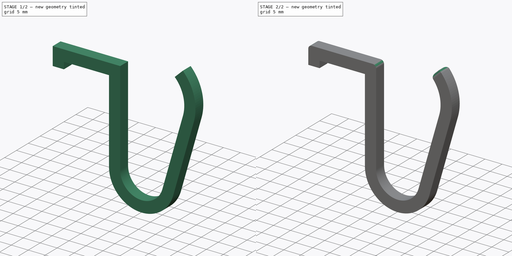
[diagram: build sequence overview — one tinted view per stage of 2, left to right]
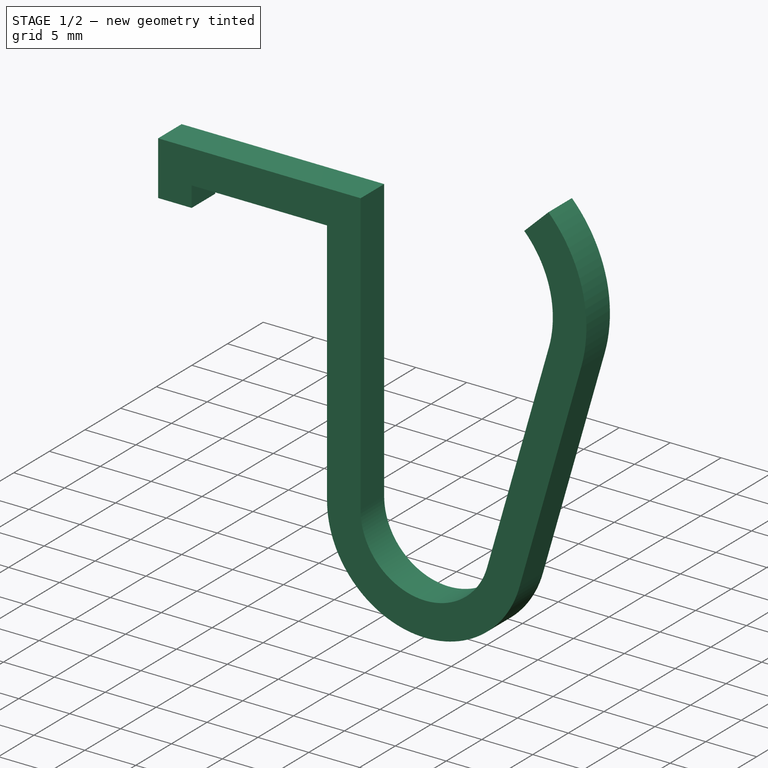
[diagram: stage 1 of 2 — iso view after this stage's code; geometry added in this stage tinted green]
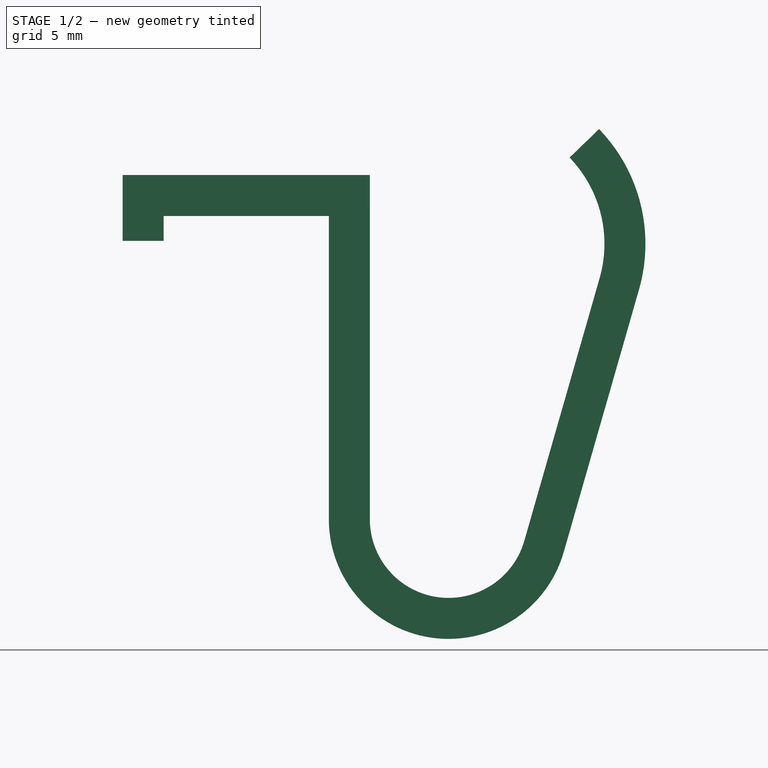
[diagram: stage 1 of 2 — front view after this stage's code; geometry added in this stage tinted green]
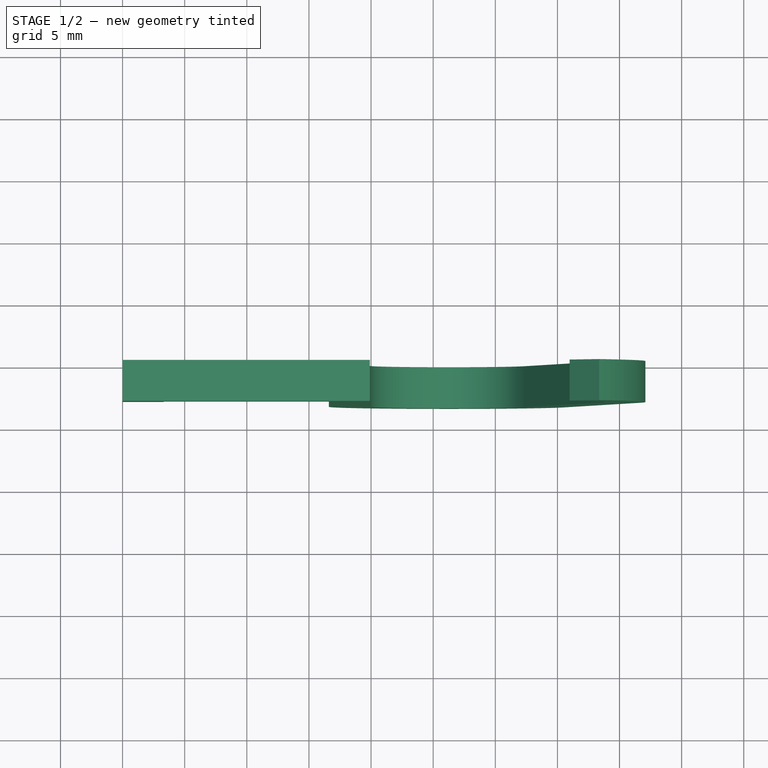
[diagram: stage 1 of 2 — top view after this stage's code; geometry added in this stage tinted green]
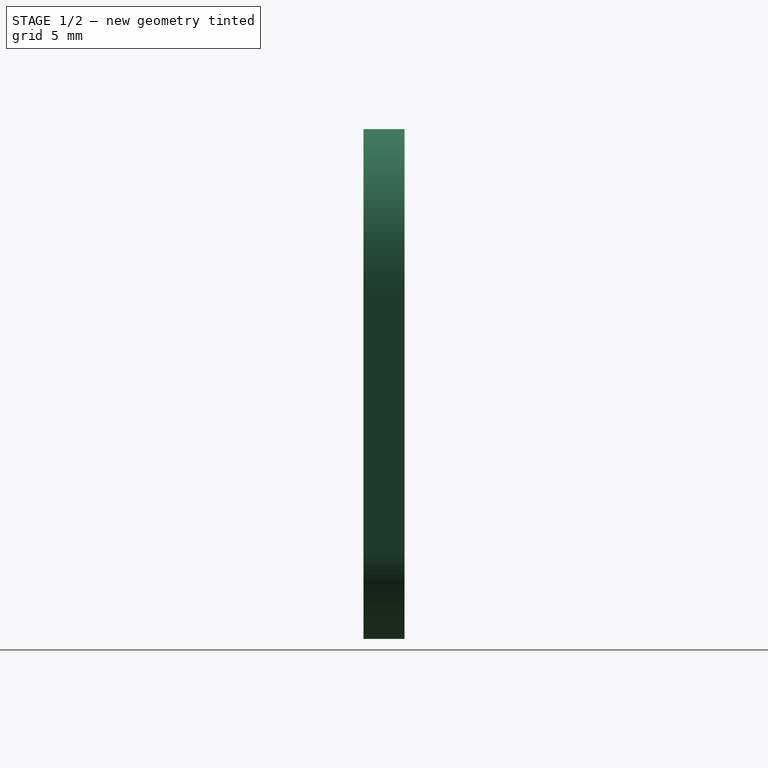
[diagram: stage 1 of 2 — right view after this stage's code; geometry added in this stage tinted green]
FCSTD DOCUMENT  (FreeCAD 0.19R22960 (Git))
Label: USB hub holder
License: All rights reserved
LicenseURL: http://en.wikipedia.org/wiki/All_rights_reserved
objects: Image::ImagePlane×2, Sketcher::SketchObject×1, PartDesign::Pad×1, PartDesign::Fillet×1, PartDesign::Body×1
note: 6 computed .brp shape members not serialized (recipe doc carries the construction recipe); baked Part::Feature solids carry a one-line shape summary decoded from their .brp

FEATURE [Image::ImagePlane] ImagePlane001
  Placement = pos=(0,0,0) rot=(0,0,1;6.25701rad)
  XSize = 45.2903
  YSize = 31.0009
FEATURE [Image::ImagePlane] ImagePlane
  Placement = pos=(28.4636,1,-12.4479) rot=(0.999695,0.01745,-0.01745;1.5711rad)
  XSize = 24.304
  YSize = 42.9994
FEATURE [Sketcher::SketchObject] Sketch002
  MapMode = 5
  Placement = pos=(0,0,0) rot=(1,0,0;1.5708rad)
  Support = -> [XZ_Plane]
  expr: Constraints[45] = .Constraints.grab_angle
  sketch-geometry (17):
    g0: LineSegment StartX=16.6 StartY=3.3 StartZ=0 EndX=19.9 EndY=3.3 EndZ=0
    g1: LineSegment StartX=19.9 StartY=3.3 StartZ=0 EndX=19.9 EndY=-24.4 EndZ=0
    g2: ArcOfCircle CenterX=26.24 CenterY=-24.4 CenterZ=0 NormalX=0 NormalY=0 NormalZ=1 AngleXU=0 Radius=6.34 StartAngle=3.14159 EndAngle=6.00393
    g3: ArcOfCircle CenterX=26.24 CenterY=-24.4 CenterZ=0 NormalX=0 NormalY=0 NormalZ=1 AngleXU=0 Radius=9.64 StartAngle=3.14159 EndAngle=6.00393
    g4: LineSegment StartX=35.5066 StartY=-27.0571 StartZ=0 EndX=41.5706 EndY=-5.90939 EndZ=0
    g5: LineSegment StartX=16.6 StartY=3.3 StartZ=0 EndX=0 EndY=3.3 EndZ=0
    g6: LineSegment StartX=0 StartY=3.3 StartZ=0 EndX=0 EndY=0 EndZ=0
    g7: LineSegment StartX=16.6 StartY=0 StartZ=0 EndX=16.6 EndY=-24.4 EndZ=0
    g8: LineSegment StartX=0 StartY=0 StartZ=0 EndX=0 EndY=-2 EndZ=0
    g9: LineSegment StartX=0 StartY=-2 StartZ=0 EndX=3.3 EndY=-2 EndZ=0
    g10: LineSegment StartX=3.3 StartY=-2 StartZ=0 EndX=3.3 EndY=0 EndZ=0
    g11: LineSegment StartX=3.3 StartY=0 StartZ=0 EndX=16.6 EndY=0 EndZ=0
    g12: LineSegment StartX=32.3344 StartY=-26.1475 StartZ=0 EndX=38.3984 EndY=-4.99978 EndZ=0
    g13: LineSegment [constr] StartX=32.3344 StartY=-26.1475 StartZ=0 EndX=35.5066 EndY=-27.0571 EndZ=0
    g14: ArcOfCircle CenterX=28.7858 CenterY=-2.24341 CenterZ=0 NormalX=0 NormalY=0 NormalZ=1 AngleXU=0 Radius=10 StartAngle=6.00393 EndAngle=7.05113
    g15: ArcOfCircle CenterX=28.7858 CenterY=-2.24341 CenterZ=0 NormalX=0 NormalY=0 NormalZ=1 AngleXU=0 Radius=13.3 StartAngle=6.00393 EndAngle=7.05113
    g16: LineSegment StartX=35.9792 StartY=4.70317 StartZ=0 EndX=38.353 EndY=6.99555 EndZ=0
  constraints (48):
    c: Coincident(g0,g1)
    c: Horizontal(g0)
    c: Vertical(g1)
    c: DistanceX(g0,g0) = 3.3
    c: Tangent(g4,g3) = -1.5708
    c: Tangent(g2,g1) = -1.5708
    c: Horizontal(g5)
    c: Coincident(g5,g0)
    c: DistanceY(g1,g0) = 27.7
    c: Coincident(g5,g6)
    c: Vertical(g6)
    c: Vertical(g7)
    c: Coincident(g6,g8)
    c: Vertical(g8)
    c: Equal(g6,g0)
    c: Tangent(g7,g3) = -1.5708
    c: Coincident(g8,g9)
    c: Horizontal(g9)
    c: Coincident(g9,g10)
    c: Vertical(g10)
    c: Coincident(g10,g11)
    c: Coincident(g11,g7)
    c: Horizontal(g11)
    c: DistanceX(g9,g9) = 3.3
    c: DistanceY(g10,g10) = 2
    c: DistanceX(g10,g7) = 13.3
    c: Coincident(g6,g-1)
    c: Equal(g6,g0)
    c: PointOnObject(g10,g-1)
    c: Parallel(g4,g12)
    c: Tangent(g2,g12) = -1.5708
    c: Angle(g2) = 2.86234
    c: Vertical(g7,g0)
    c: Radius(g2) = 6.34
    c: Coincident(g13,g2)
    c: Coincident(g13,g3)
    c: Perpendicular(g4,g13)
    c: Coincident(g15,g14)
    c: Coincident(g15,g4)
    c: Equal(g13,g0)
    c: Tangent(g14,g12) = -1.5708
    c: Coincident(g16,g14)
    c: Coincident(g16,g15)
    c: Perpendicular(g14,g16)
    c: Angle(g14) = 1.0472  'grab_angle'
    c: Angle(g15) = 1.0472
    c: Distance(g4) = 22
    c: Radius(g14) = 10
FEATURE [PartDesign::Pad] Pad
  Direction = (1,1,1)
  Length = 3.3
  Length2 = 100
  Placement = pos=(0,0,0) rot=(1,0,0;1.5708rad)
  Profile = -> Sketch002
  Refine = true
  Type = 0
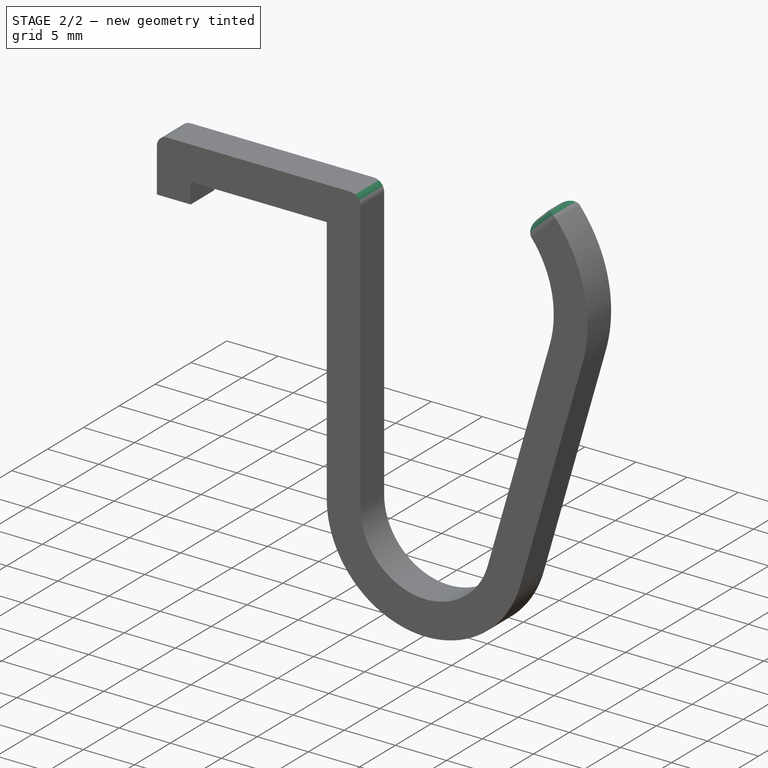
[diagram: stage 2 of 2 — iso view after this stage's code; geometry added in this stage tinted green]
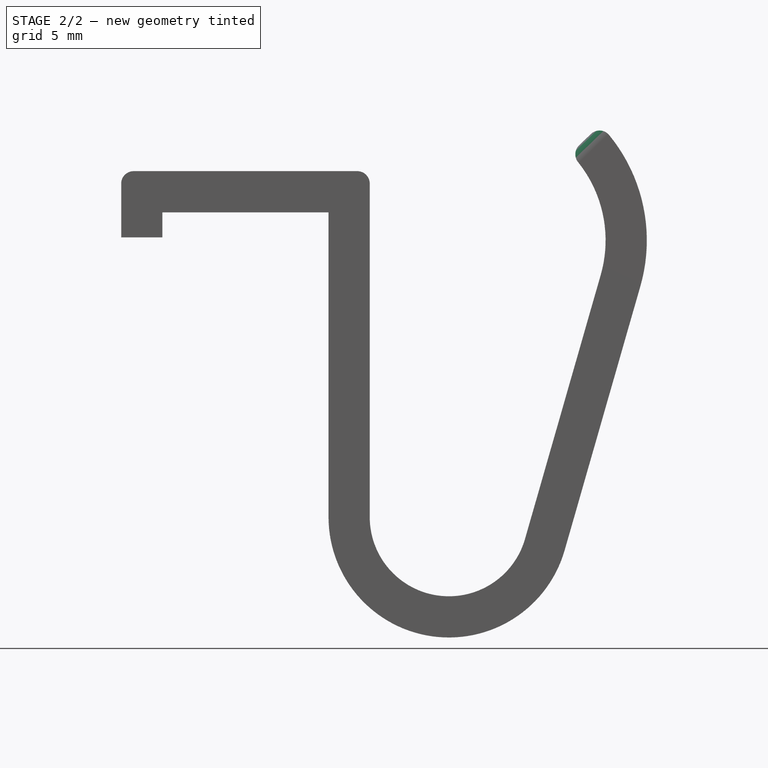
[diagram: stage 2 of 2 — front view after this stage's code; geometry added in this stage tinted green]
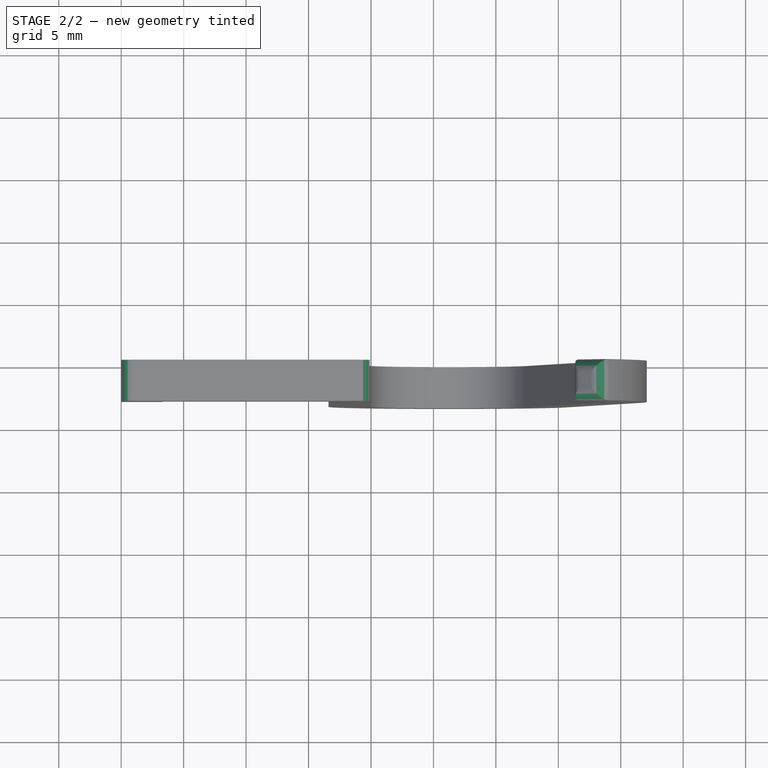
[diagram: stage 2 of 2 — top view after this stage's code; geometry added in this stage tinted green]
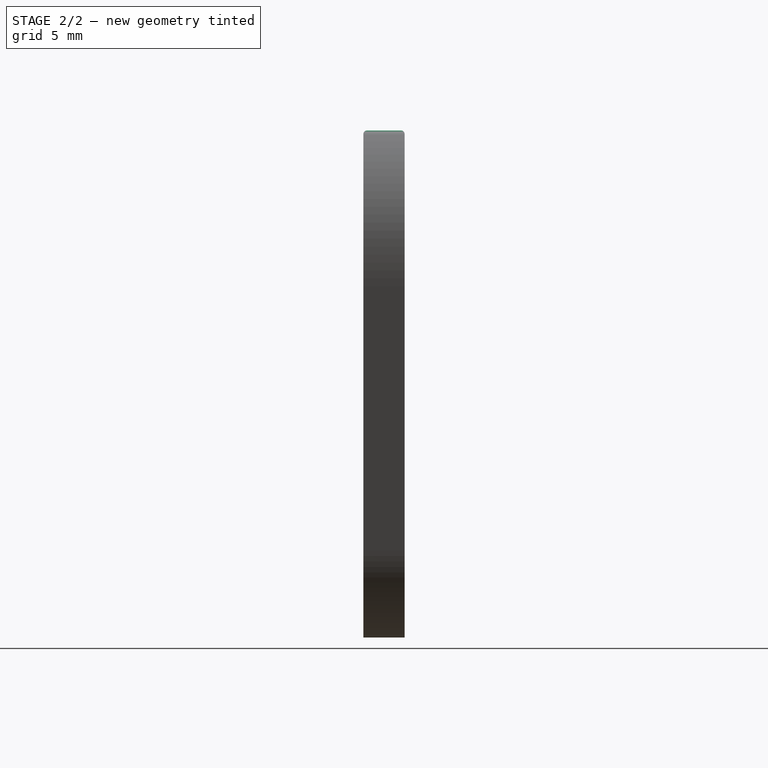
[diagram: stage 2 of 2 — right view after this stage's code; geometry added in this stage tinted green]
FEATURE [PartDesign::Fillet] Fillet
  Base = -> Pad [Edge42,Edge1,Face5]
  BaseFeature = -> Pad
  Placement = pos=(0,0,0) rot=(1,0,0;1.5708rad)
  Radius = 1
  Refine = true
  SupportTransform = false
FEATURE [PartDesign::Body] Body
  Group = -> [Sketch002,Pad,Fillet]
  Origin = -> Origin
  Tip = -> Fillet
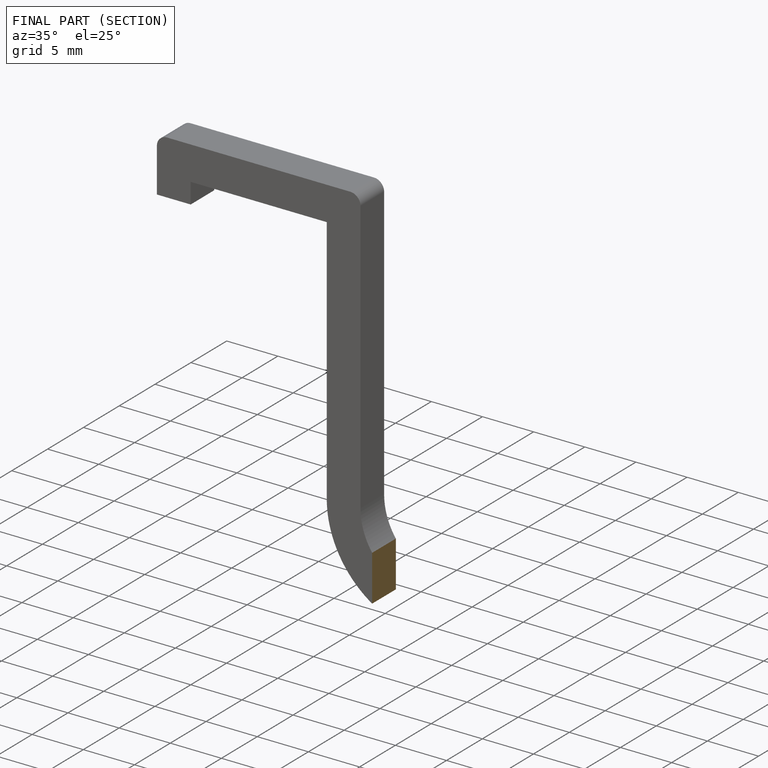
[diagram: finished part — half-section view (interior)]
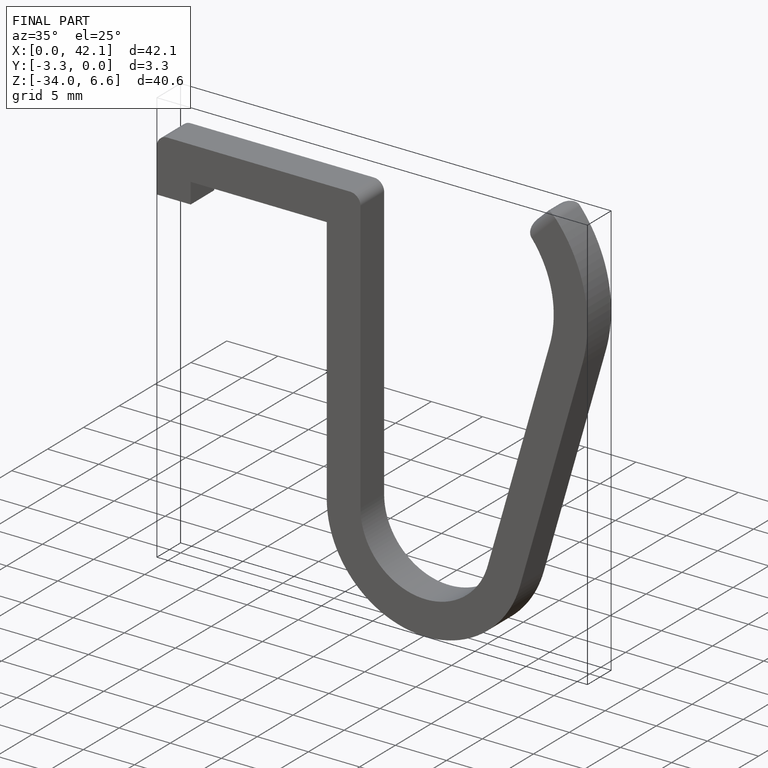
[diagram: finished part — iso view with bounding-box wireframe]
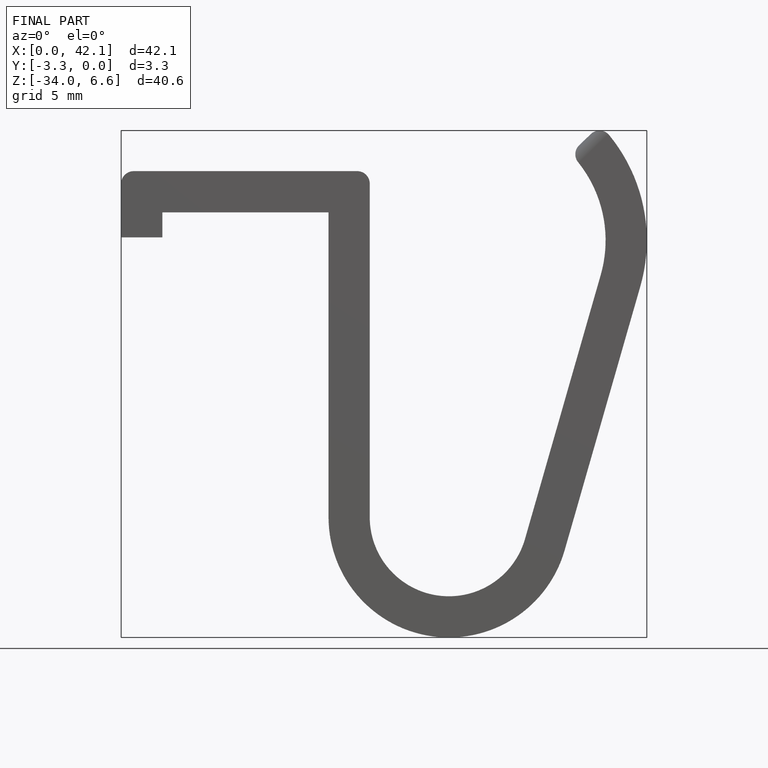
[diagram: finished part — front view with bounding-box wireframe]
